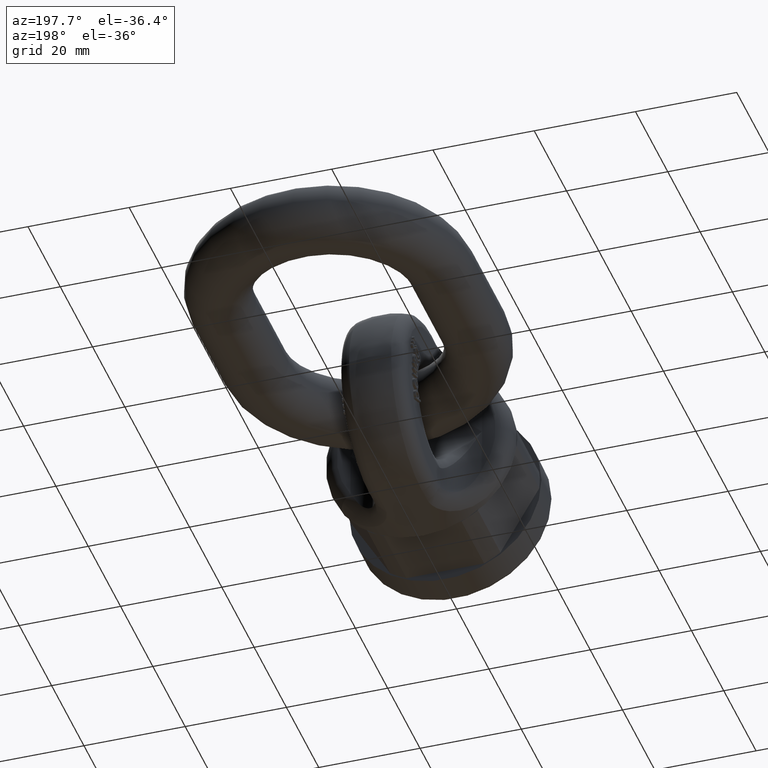
[diagram: clean part render]
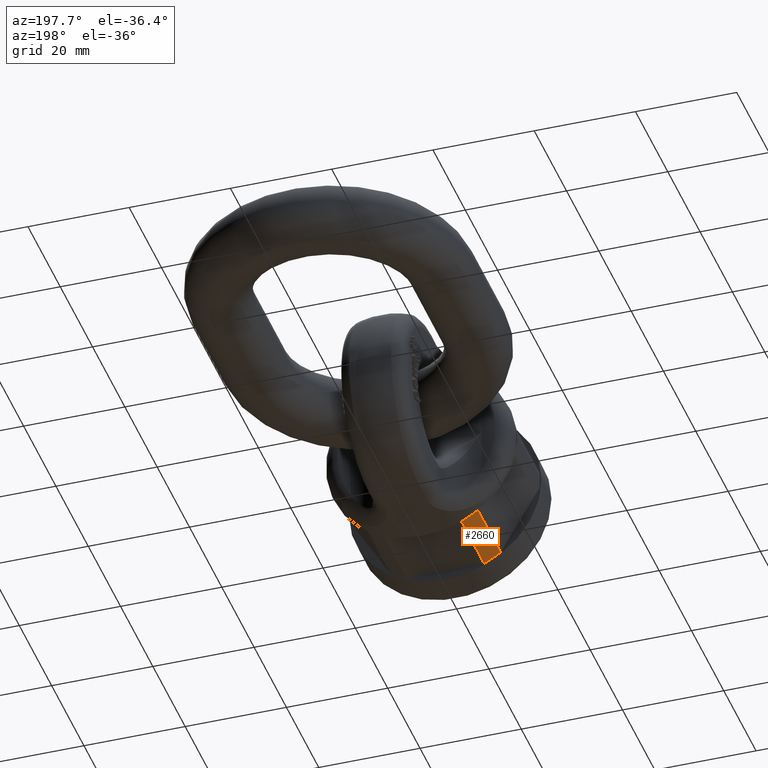
[diagram: same view with one face highlighted and labeled with its STEP entity id]
A machine part, auxiliary view. The second image highlights one B-rep face of the part: STEP entity #2660.
In plain terms, the highlighted cylindrical surface (partial cylindrical patch) has radius 18.6484 mm, axis along (-0, 1, 0).
Its self-contained STEP definition (entity closure, byte-faithful):
#1818=FACE_OUTER_BOUND('',#3083,.T.);
#2026=CYLINDRICAL_SURFACE('',#5635,18.6484136948227);
#2050=LINE('',#6611,#2306);
#2054=LINE('',#6619,#2310);
#2306=VECTOR('',#5848,1.);
#2310=VECTOR('',#5854,1.);
#2660=ADVANCED_FACE('',(#1818),#2026,.T.);
#3083=EDGE_LOOP('',(#3424,#3425,#3426,#3427));
#3424=ORIENTED_EDGE('',*,*,#4951,.F.);
#3425=ORIENTED_EDGE('',*,*,#4960,.T.);
#3426=ORIENTED_EDGE('',*,*,#4975,.T.);
#3427=ORIENTED_EDGE('',*,*,#4964,.T.);
#4553=VERTEX_POINT('',#6591);
#4554=VERTEX_POINT('',#6593);
#4561=VERTEX_POINT('',#6612);
#4564=VERTEX_POINT('',#6620);
#4951=EDGE_CURVE('',#4553,#4554,#5543,.T.);
#4960=EDGE_CURVE('',#4553,#4561,#2050,.T.);
#4964=EDGE_CURVE('',#4564,#4554,#2054,.T.);
#4975=EDGE_CURVE('',#4561,#4564,#5547,.T.);
#5543=CIRCLE('',#5611,18.6484136948227);
#5547=CIRCLE('',#5623,18.6484136948227);
#5611=AXIS2_PLACEMENT_3D('',#6592,#5829,#5830);
#5623=AXIS2_PLACEMENT_3D('',#6641,#5873,#5874);
#5635=AXIS2_PLACEMENT_3D('',#6653,#5897,#5898);
#5829=DIRECTION('',(3.82702124733548E-17,-1.,0.));
#5830=DIRECTION('',(-1.,-4.65112878866048E-17,0.));
#5848=DIRECTION('',(-2.4492935982947E-17,1.,0.));
#5854=DIRECTION('',(2.4492935982947E-17,-1.,0.));
#5873=DIRECTION('',(0.,-1.,0.));
#5874=DIRECTION('',(0.,0.,-1.));
#5897=DIRECTION('',(-2.4492935982947E-17,1.,0.));
#5898=DIRECTION('',(-1.,-2.4492935982947E-17,0.));
#6591=CARTESIAN_POINT('',(-10.8895695744386,7.,-15.1387122245161));
#6592=CARTESIAN_POINT('',(-1.71450551880629E-16,7.,0.));
#6593=CARTESIAN_POINT('',(-7.66572457979366,7.,-17.));
#6611=CARTESIAN_POINT('',(-10.8895695744386,9.38780506978953E-17,-15.1387122245161));
#6612=CARTESIAN_POINT('',(-10.8895695744386,21.,-15.1387122245161));
#6619=CARTESIAN_POINT('',(-7.66572457979367,-1.8775610139579E-16,-17.));
#6620=CARTESIAN_POINT('',(-7.66572457979366,21.,-17.));
#6641=CARTESIAN_POINT('',(-5.14351655641888E-16,21.,0.));
#6653=CARTESIAN_POINT('',(0.,0.,0.));